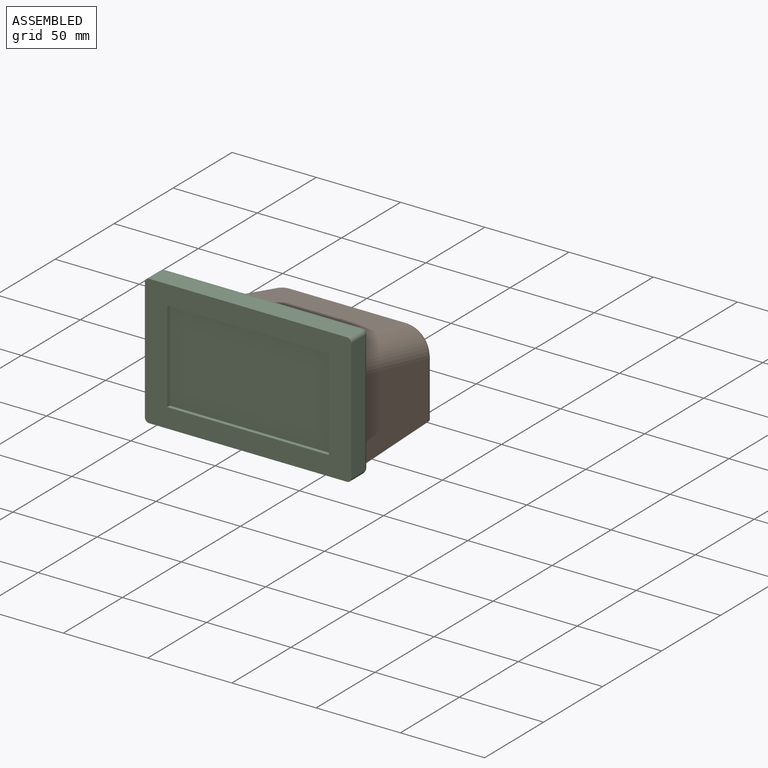
[diagram: assembled view]
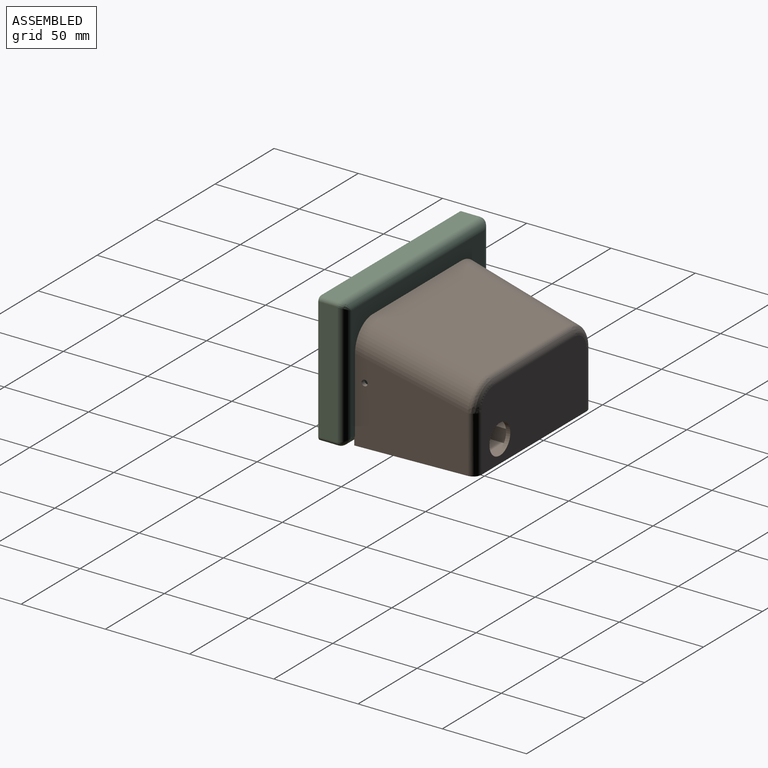
[diagram: assembled view, second angle]
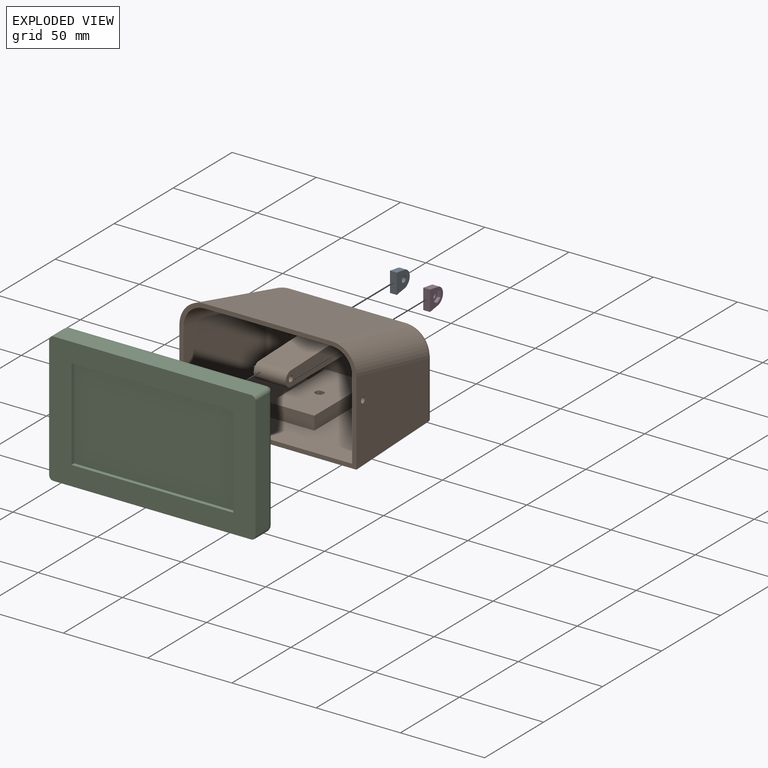
[diagram: exploded view]
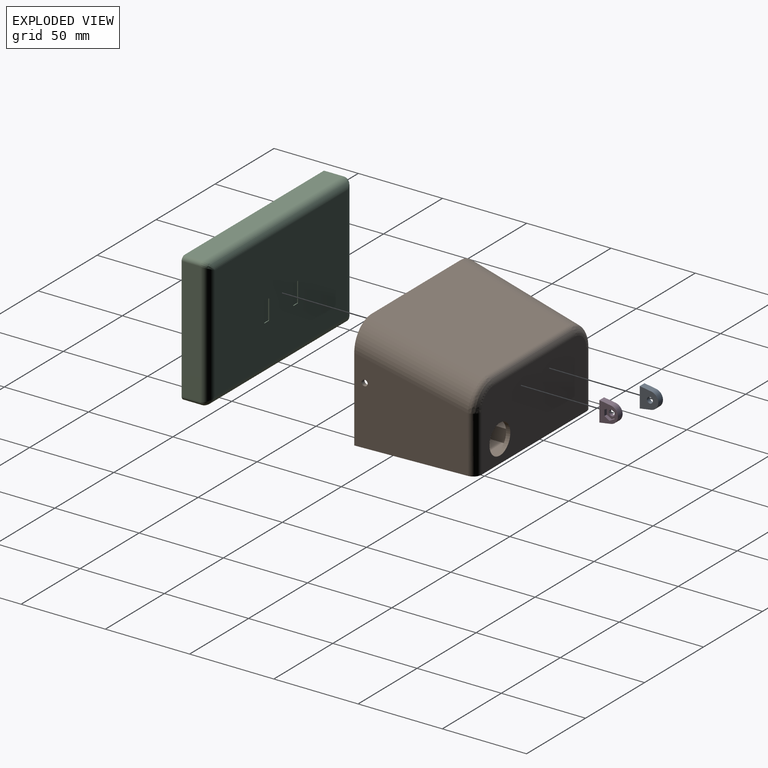
[diagram: exploded view, second angle]
ASSEMBLY  parts=4 mates=3
PART A: 9 faces, bbox 4x12x11 mm
  f0: plane 6.77x4mm, normal (0,0.99,0.15), area 27.4mm2, adj f1,f3,f5,f6
  f1: cylinder r=5mm len=9.88mm, axis (-1,0,0), area 56.6mm2, adj f0,f2,f5,f6
  f2: plane 6.77x4mm, normal (0,-0.99,0.15), area 27.4mm2, adj f1,f3,f5,f6
  f3: plane 12x4mm, normal (0,0,-1), area 48mm2, adj f0,f2,f5,f6
  f4: cylinder r=3mm len=6mm, axis (-1,0,0), area 37.7mm2, adj f5,f8
  f5: plane 12x11mm, normal (1,0,0), area 77.4mm2, adj f0,f1,f2,f3,f4
  f6: plane 12x11mm, normal (-1,0,0), area 96mm2, adj f0,f1,f2,f3,f7
  f7: cylinder r=1.75mm len=3.5mm, axis (-1,0,0), area 22mm2, adj f6,f8
  f8: plane 6x6mm, normal (1,0,0), area 18.7mm2, adj f4,f7
PART B: 83 faces, bbox 107.1x74.7x66.9 mm
  f0: plane 88.92x41.33mm, normal (0,-1,0), area 2806.4mm2, adj f2,f5,f8,f22,f26,f27,f28,f29
  f1: plane 75.25x65.6mm, normal (0,-0.24,-0.97), area 4481.9mm2, adj f2,f5,f8,f10,f24,f25,f28,f82
  f2: cylinder r=2.5mm len=25.06mm, axis (1,0,0), area 83.2mm2, adj f0,f1,f5,f29
  f3: plane 19x0mm, normal (0,-1,0), area 0mm2, adj f38,f40
  f4: plane 19x0mm, normal (0,-1,0), area 0mm2, adj f38,f40
  f5: plane 65.99x20.98mm, normal (-1,0,0), area 801.2mm2, adj f0,f1,f2,f9,f36,f38,f39,f40
  f6: plane 65.4x49.93mm, normal (1,0.05,0), area 2712.5mm2, adj f10,f12,f16,f17,f41,f42
  f7: plane 65.28x47.4mm, normal (-1,-0.05,0), area 2543.8mm2, adj f10,f22,f25,f26,f41,f42
  f8: plane 66x20.98mm, normal (1,0,0), area 801.4mm2, adj f0,f1,f9,f28,f36,f38,f39,f40
  f9: plane 39.39x19.02mm, normal (0,-0.03,1), area 748.5mm2, adj f5,f8,f39,f82
  f10: plane 106.82x66.82mm, normal (0,-1,0), area 803.2mm2, adj f1,f6,f7,f12,f13,f14,f15,f16
  f11: plane 88.92x43.83mm, normal (0,1,0), area 3609.3mm2, adj f12,f17,f18,f19,f20,f21,f37
  f12: plane 105x70mm, normal (0,0,-1), area 7092.7mm2, adj f6,f10,f11,f13,f17,f21,f45,f46
  f13: plane 65.23x49.77mm, normal (-1,0.05,0), area 2722.1mm2, adj f10,f12,f15,f21
  f14: plane 75.3x66.2mm, normal (0,0.24,0.97), area 4924.1mm2, adj f10,f15,f16,f19
  f15: cylinder r=15mm len=71.09mm, axis (0.05,0.97,-0.24), area 1585.3mm2, adj f10,f13,f14,f20
  f16: cylinder r=15mm len=71.09mm, axis (0.05,-0.97,0.24), area 1585.3mm2, adj f6,f10,f14,f18
  f17: cylinder r=5mm len=33.65mm, axis (0,0,1), area 256.4mm2, adj f6,f11,f12,f18
  f18: bspline ~15.04x14.89mm, area 141.6mm2, adj f11,f16,f17,f19
  f19: cylinder r=5mm len=69.12mm, axis (1,0,0), area 459.1mm2, adj f11,f14,f18,f20
  f20: bspline ~15.04x14.89mm, area 141.6mm2, adj f11,f15,f19,f21
  f21: cylinder r=5mm len=33.65mm, axis (0,0,1), area 256.4mm2, adj f11,f12,f13,f20
  f22: plane 100x67.5mm, normal (0,0,1), area 6515.6mm2, adj f0,f7,f10,f23,f26,f30,f45,f46
  f23: plane 65.12x47.24mm, normal (1,-0.05,0), area 2553.4mm2, adj f10,f22,f24,f30
  f24: cylinder r=12.5mm len=70mm, axis (0.05,0.97,-0.24), area 1313.8mm2, adj f1,f10,f23,f29
  f25: cylinder r=12.5mm len=70mm, axis (0.05,-0.97,0.24), area 1313.8mm2, adj f1,f7,f10,f27
  f26: cylinder r=2.5mm len=31.15mm, axis (0,0,1), area 118.7mm2, adj f0,f7,f22,f27
  f27: bspline ~12.61x12.4mm, area 62.8mm2, adj f0,f25,f26,f28
  f28: cylinder r=2.5mm len=25.06mm, axis (1,0,0), area 83.2mm2, adj f0,f1,f8,f27
  f29: bspline ~12.61x12.4mm, area 62.8mm2, adj f0,f2,f24,f30
  f30: cylinder r=2.5mm len=31.15mm, axis (0,0,1), area 118.7mm2, adj f0,f22,f23,f29
  f31: plane 46.91x26.36mm, normal (0,0,-1), area 1217.3mm2, adj f0,f32,f34,f35,f43,f44
  f32: plane 46.9x7.98mm, normal (1,0,0), area 374.2mm2, adj f0,f31,f33,f35
  f33: plane 46.91x26.36mm, normal (0,0,1), area 1217.3mm2, adj f0,f32,f34,f35,f43,f44
  f34: plane 46.9x7.98mm, normal (-1,0,0), area 374.2mm2, adj f0,f31,f33,f35
  f35: plane 26.35x7.98mm, normal (0,-1,0), area 210.3mm2, adj f31,f32,f33,f34
  f36: plane 45.9x19.03mm, normal (0,0,-1), area 872mm2, adj f5,f8,f39,f81
  f37: cylinder r=8.83mm len=17.67mm, axis (0,-1,0), area 138.8mm2, adj f0,f11
  f38: cylinder r=1.75mm len=19mm, axis (1,0,0), area 104.3mm2, adj f3,f4,f5,f8
  f39: cylinder r=4.5mm len=19mm, axis (1,0,0), area 268.5mm2, adj f5,f8,f9,f36
  f40: cylinder r=1.75mm len=19mm, axis (-1,0,0), area 104.3mm2, adj f3,f4,f5,f8
  f41: cylinder r=1.75mm len=3.5mm, axis (-1,0,0), area 13.8mm2, adj f6,f7,f42
  f42: cylinder r=1.75mm len=3.5mm, axis (-1,0,0), area 13.7mm2, adj f6,f7,f41
  f43: cylinder r=2.51mm len=7.98mm, axis (0,0,-1), area 100.1mm2, adj f31,f33,f44
  f44: plane 7.98x2.99mm, normal (0,-1,0), area 23.8mm2, adj f31,f33,f43
  f45: plane 2.99x2.5mm, normal (0,-1,0), area 7.5mm2, adj f12,f22,f46
  f46: cylinder r=2.51mm len=5.01mm, axis (0,0,-1), area 31.4mm2, adj f12,f22,f45
  f47: plane 6.08x3.84mm, normal (0.85,0,0.53), area 14.4mm2, adj f0,f48,f59,f60
  f48: plane 4.83x3.81mm, normal (0.79,0,-0.62), area 12.3mm2, adj f0,f47,f49,f60
  f49: plane 2.57x2mm, normal (0,0,1), area 5.1mm2, adj f0,f48,f50,f60
  f50: plane 3.71x2.96mm, normal (-0.78,0,0.62), area 9.5mm2, adj f0,f49,f51,f60
  f51: plane 2x1.29mm, normal (-0.82,0,0.58), area 3.1mm2, adj f0,f50,f52,f60
  f52: plane 4.99x2mm, normal (1,0,0), area 10mm2, adj f0,f51,f53,f60
  f53: plane 2.31x2mm, normal (0,0,1), area 4.6mm2, adj f0,f52,f54,f60
  f54: plane 10.91x2mm, normal (-1,0,0), area 21.8mm2, adj f0,f53,f55,f60
  f55: plane 2.31x2mm, normal (0,0,-1), area 4.6mm2, adj f0,f54,f56,f60
  f56: plane 3.9x2mm, normal (1,0,0), area 7.8mm2, adj f0,f55,f57,f60
  f57: plane 2x0.98mm, normal (0.58,0,-0.81), area 2.4mm2, adj f0,f56,f58,f60
  f58: plane 4.6x2.86mm, normal (-0.85,0,-0.53), area 10.8mm2, adj f0,f57,f59,f60
  f59: plane 2.63x2mm, normal (0,0,-1), area 5.3mm2, adj f0,f47,f58,f60
  f60: plane 10.91x8.78mm, normal (0,-1,0), area 54.6mm2, adj f47,f48,f49,f50,f51,f52,f53,f54
  f61: plane 2x1.93mm, normal (-1,0,0), area 3.9mm2, adj f0,f62,f79,f80
  f62: plane 2.07x2mm, normal (0,0,-1), area 4.1mm2, adj f0,f61,f63,f80
  f63: plane 2.28x2mm, normal (-1,0,0), area 4.6mm2, adj f0,f62,f64,f80
  f64: extruded ~2x1.47mm, area 3mm2, adj f0,f63,f65,f80
  f65: extruded ~2.12x2mm, area 4.8mm2, adj f0,f64,f66,f80
  f66: extruded ~2.71x2mm, area 5.7mm2, adj f0,f65,f67,f80
  f67: extruded ~2.71x2mm, area 5.8mm2, adj f0,f66,f68,f80
  f68: extruded ~2.4x2mm, area 5.4mm2, adj f0,f67,f69,f80
  f69: extruded ~2.49x2mm, area 5.2mm2, adj f0,f68,f70,f80
  f70: plane 2x1.85mm, normal (0.92,0,-0.38), area 4mm2, adj f0,f69,f71,f80
  f71: extruded ~3.24x2mm, area 6.7mm2, adj f0,f70,f72,f80
  f72: extruded ~4.19x2mm, area 9.1mm2, adj f0,f71,f73,f80
  f73: extruded ~4.12x2mm, area 9mm2, adj f0,f72,f74,f80
  f74: extruded ~4.17x2mm, area 8.9mm2, adj f0,f73,f75,f80
  f75: extruded ~3.77x2mm, area 8.3mm2, adj f0,f74,f76,f80
  f76: extruded ~2x1.9mm, area 3.8mm2, adj f0,f75,f77,f80
  f77: extruded ~2x1.98mm, area 4.1mm2, adj f0,f76,f78,f80
  f78: plane 5.66x2mm, normal (1,0,0), area 11.3mm2, adj f0,f77,f79,f80
  f79: plane 4.33x2mm, normal (0,0,1), area 8.7mm2, adj f0,f61,f78,f80
  f80: plane 11.22x8.96mm, normal (0,-1,0), area 58mm2, adj f61,f62,f63,f64,f65,f66,f67,f68
  f81: plane 19.01x15.61mm, normal (0,-0.02,-1), area 296.5mm2, adj f0,f5,f8,f36
  f82: plane 19x10.46mm, normal (0,-1,0), area 198.7mm2, adj f1,f5,f8,f9
PART C: 33 faces, bbox 122.5x16.2x77.5 mm
  f0: plane 54.5x2.23mm, normal (-1,0,0), area 121.5mm2, adj f1,f7,f8,f10
  f1: plane 96x2.23mm, normal (0,0,1), area 214.1mm2, adj f0,f2,f8,f10
  f2: plane 54.5x2.23mm, normal (1,0,0), area 121.5mm2, adj f1,f7,f8,f10
  f3: plane 117.5x11.23mm, normal (0,0,-1), area 1319.5mm2, adj f8,f11,f14,f22
  f4: plane 72.5x11.23mm, normal (1,0,0), area 814.2mm2, adj f8,f11,f12,f18
  f5: plane 117.5x11.23mm, normal (0,0,1), area 1319.5mm2, adj f8,f12,f13,f15
  f6: plane 72.5x11.23mm, normal (-1,0,0), area 814.2mm2, adj f8,f13,f14,f19
  f7: plane 96x2.23mm, normal (0,0,-1), area 214.1mm2, adj f0,f2,f8,f10
  f8: plane 122.5x77.5mm, normal (0,-1,0), area 4256.4mm2, adj f0,f1,f2,f3,f4,f5,f6,f7
  f9: plane 112.5x67.5mm, normal (0,1,0), area 7497.8mm2, adj f15,f18,f19,f22,f23,f24,f25,f26
  f10: plane 96x54.5mm, normal (0,-1,0), area 5232mm2, adj f0,f1,f2,f7
  f11: cylinder r=2.5mm len=11.23mm, axis (0,1,0), area 44.1mm2, adj f3,f4,f8,f20
  f12: cylinder r=2.5mm len=11.23mm, axis (0,-1,0), area 44.1mm2, adj f4,f5,f8,f16
  f13: cylinder r=2.5mm len=11.23mm, axis (0,1,0), area 44.1mm2, adj f5,f6,f8,f17
  f14: cylinder r=2.5mm len=11.23mm, axis (0,-1,0), area 44.1mm2, adj f3,f6,f8,f21
  f15: cylinder r=5mm len=117.5mm, axis (-1,0,0), area 908.6mm2, adj f5,f9,f16,f17
  f16: bspline ~5.97x5mm, area 20.6mm2, adj f12,f15,f18
  f17: bspline ~5.97x5mm, area 20.6mm2, adj f13,f15,f19
  f18: cylinder r=5mm len=72.5mm, axis (0,0,1), area 555.1mm2, adj f4,f9,f16,f20
  f19: cylinder r=5mm len=72.5mm, axis (0,0,-1), area 555.1mm2, adj f6,f9,f17,f21
  f20: bspline ~5.97x5mm, area 20.6mm2, adj f11,f18,f22
  f21: bspline ~5.97x5mm, area 20.6mm2, adj f14,f19,f22
  f22: cylinder r=5mm len=117.5mm, axis (1,0,0), area 908.6mm2, adj f3,f9,f20,f21
  f23: plane 4x0.5mm, normal (0,0,-1), area 2mm2, adj f9,f24,f26,f27
  f24: plane 12x0.5mm, normal (1,0,0), area 6mm2, adj f9,f23,f25,f27
  f25: plane 4x0.5mm, normal (0,0,1), area 2mm2, adj f9,f24,f26,f27
  f26: plane 12x0.5mm, normal (-1,0,0), area 6mm2, adj f9,f23,f25,f27
  f27: plane 12x4mm, normal (0,1,0), area 48mm2, adj f23,f24,f25,f26
  f28: plane 4x0.5mm, normal (0,0,-1), area 2mm2, adj f9,f29,f31,f32
  f29: plane 12x0.5mm, normal (1,0,0), area 6mm2, adj f9,f28,f30,f32
  f30: plane 4x0.5mm, normal (0,0,1), area 2mm2, adj f9,f29,f31,f32
  f31: plane 12x0.5mm, normal (-1,0,0), area 6mm2, adj f9,f28,f30,f32
  f32: plane 12x4mm, normal (0,1,0), area 48mm2, adj f28,f29,f30,f31
PART D: 14 faces, bbox 4x12x11 mm
  f0: plane 3.46x2mm, normal (0,0,1), area 6.9mm2, adj f1,f9,f10,f13
  f1: plane 3x2mm, normal (0,0.87,0.5), area 6.9mm2, adj f0,f2,f10,f13
  f2: plane 3x2mm, normal (0,0.87,-0.5), area 6.9mm2, adj f1,f3,f10,f13
  f3: plane 3.46x2mm, normal (0,0,-1), area 6.9mm2, adj f2,f4,f10,f13
  f4: plane 3x2mm, normal (0,-0.87,-0.5), area 6.9mm2, adj f3,f9,f10,f13
  f5: plane 6.77x4mm, normal (0,0.99,0.15), area 27.4mm2, adj f6,f8,f10,f11
  f6: cylinder r=5mm len=9.88mm, axis (-1,0,0), area 56.6mm2, adj f5,f7,f10,f11
  f7: plane 6.77x4mm, normal (0,-0.99,0.15), area 27.4mm2, adj f6,f8,f10,f11
  f8: plane 12x4mm, normal (0,0,-1), area 48mm2, adj f5,f7,f10,f11
  f9: plane 3x2mm, normal (0,-0.87,0.5), area 6.9mm2, adj f0,f4,f10,f13
  f10: plane 12x11mm, normal (1,0,0), area 74.5mm2, adj f0,f1,f2,f3,f4,f5,f6,f7
  f11: plane 12x11mm, normal (-1,0,0), area 96mm2, adj f5,f6,f7,f8,f12
  f12: cylinder r=1.75mm len=3.5mm, axis (-1,0,0), area 22mm2, adj f11,f13
  f13: plane 6.93x6mm, normal (1,0,0), area 21.6mm2, adj f0,f1,f2,f3,f4,f9,f12
PLACE A rot(axis=(0,-0.71,-0.71),180deg) t=(-1.46,54.48,4.32)mm
PLACE B rot(axis=(0,0,1),0deg) t=(9.58,81.1,-24.94)mm
PLACE C t=(8.79,81.6,-17.69)mm fixed
PLACE D rot(axis=(-1,0,0),90deg) t=(19.04,54.38,-49.1)mm
MATE fastened D.f6 <-> B.f38  axis (-1,0,0) through (19.04,87.1,-22.44)mm
MATE fastened C.f27 <-> A.f3  axis (0,1,0) through (-5.46,81.1,-16.44)mm
MATE fastened C.f32 <-> D.f8  axis (0,1,0) through (23.04,81.1,-16.44)mm
